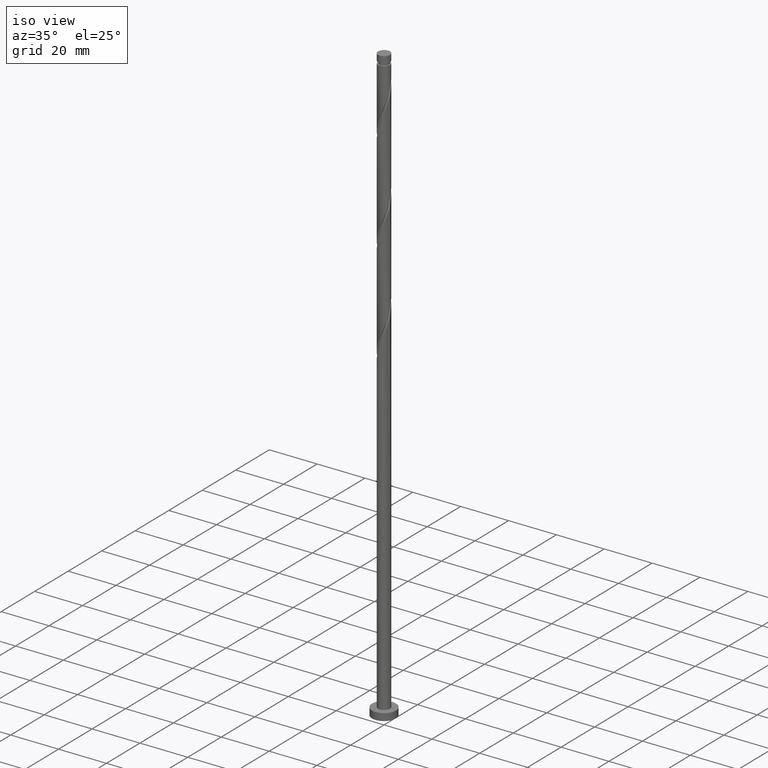
[diagram: clean part render]
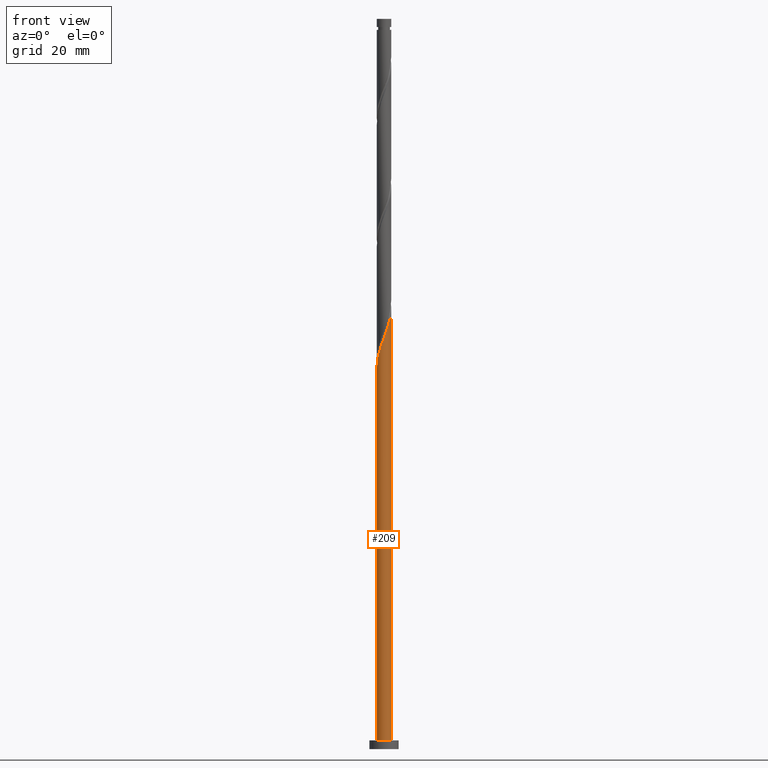
[diagram: tour spotlight — one face highlighted and labeled with its STEP entity id]
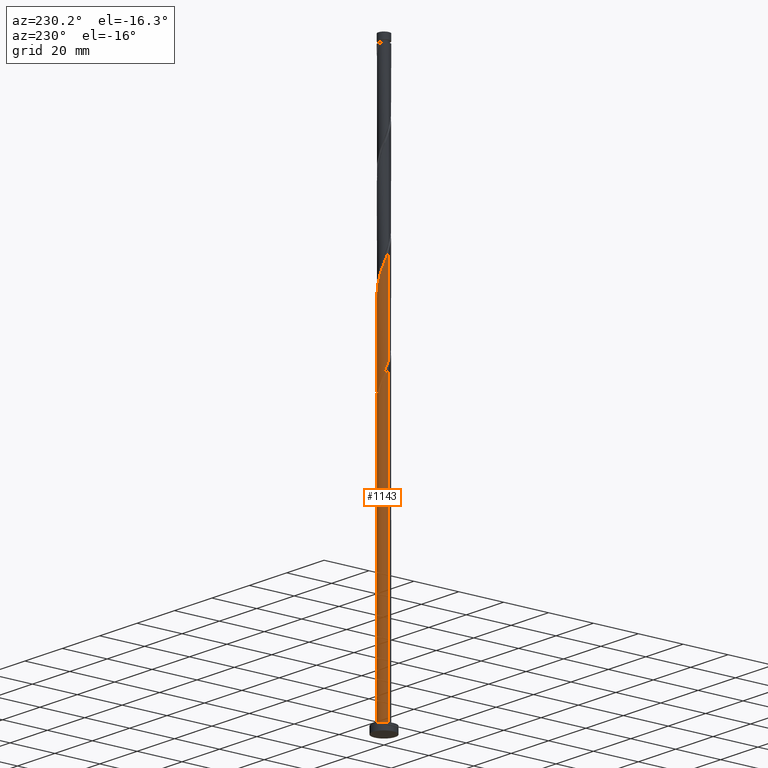
[diagram: tour spotlight — one face highlighted and labeled with its STEP entity id]
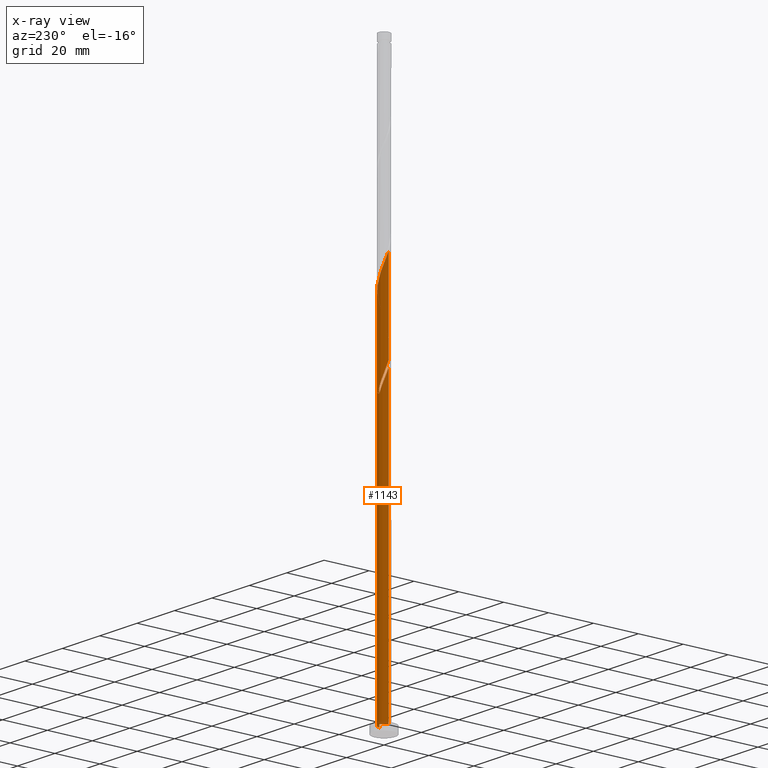
[diagram: x-ray of the same camera — body ghosted, this tour face saturated]
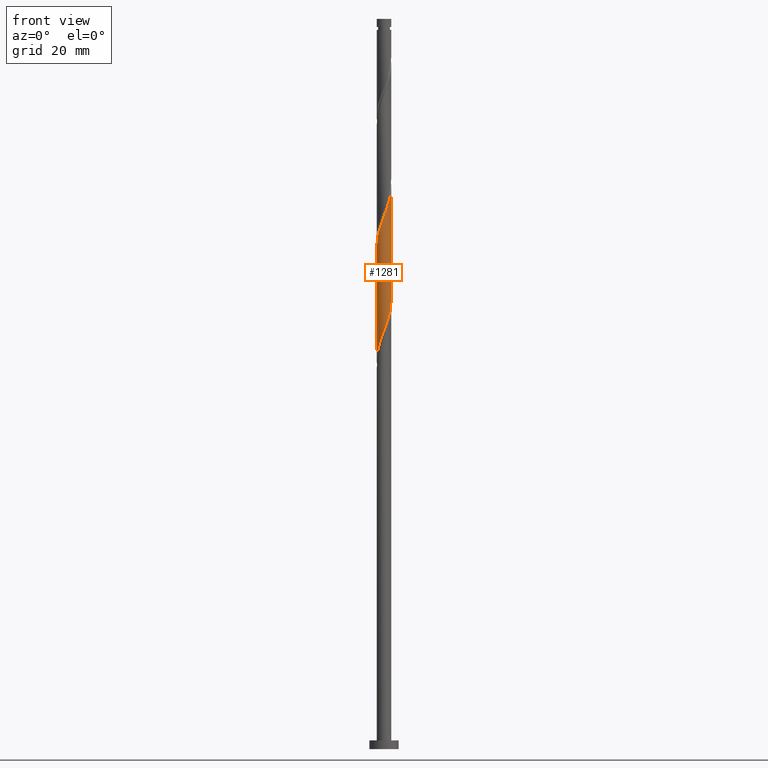
[diagram: tour spotlight — one face highlighted and labeled with its STEP entity id]
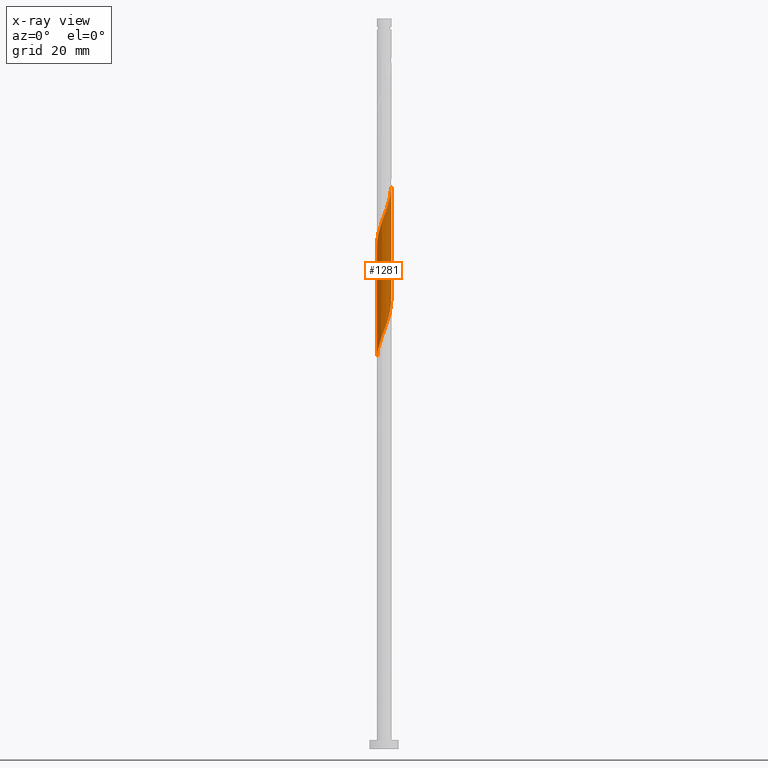
[diagram: x-ray of the same camera — body ghosted, this tour face saturated]
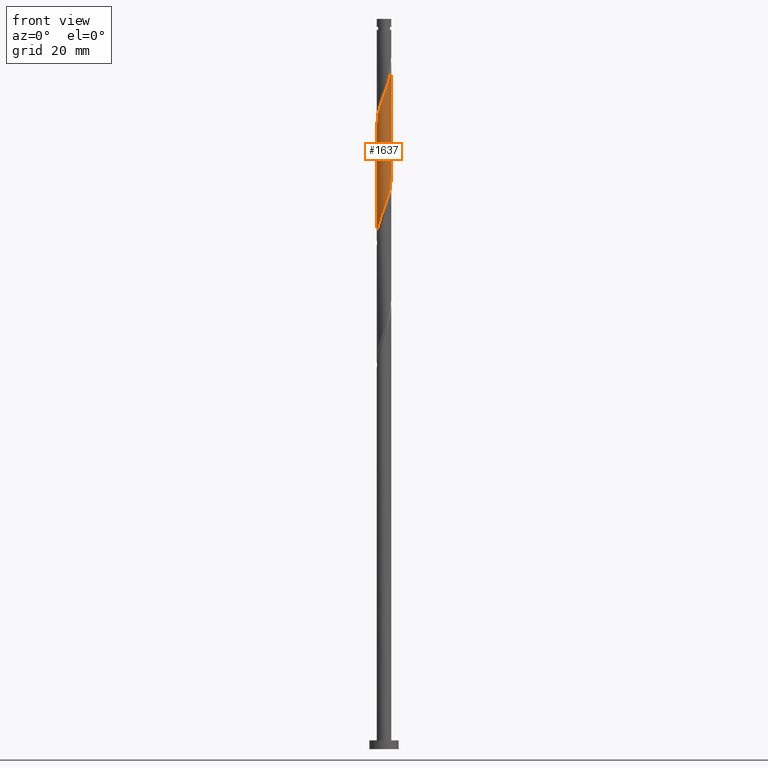
[diagram: tour spotlight — one face highlighted and labeled with its STEP entity id]
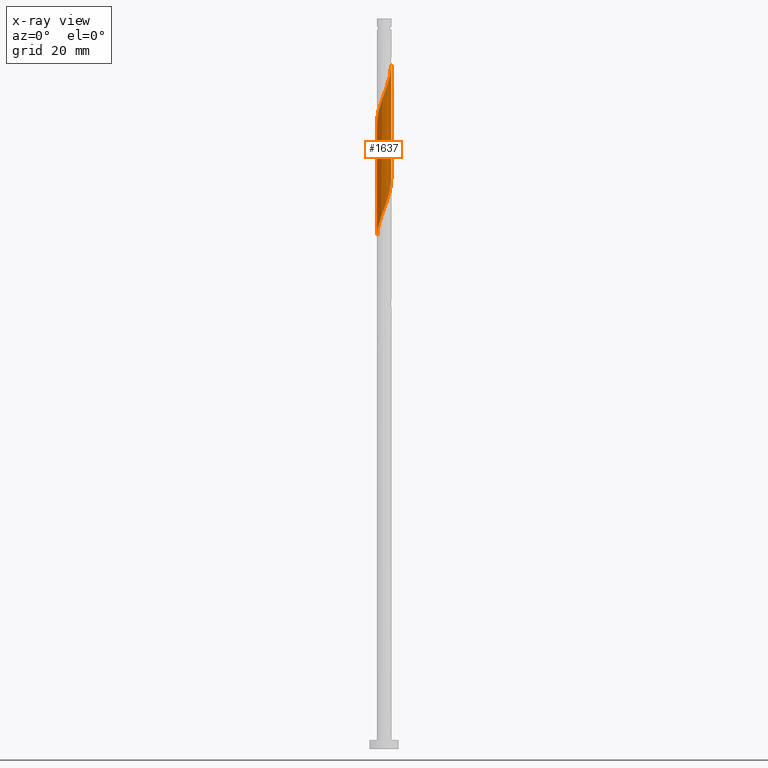
[diagram: x-ray of the same camera — body ghosted, this tour face saturated]
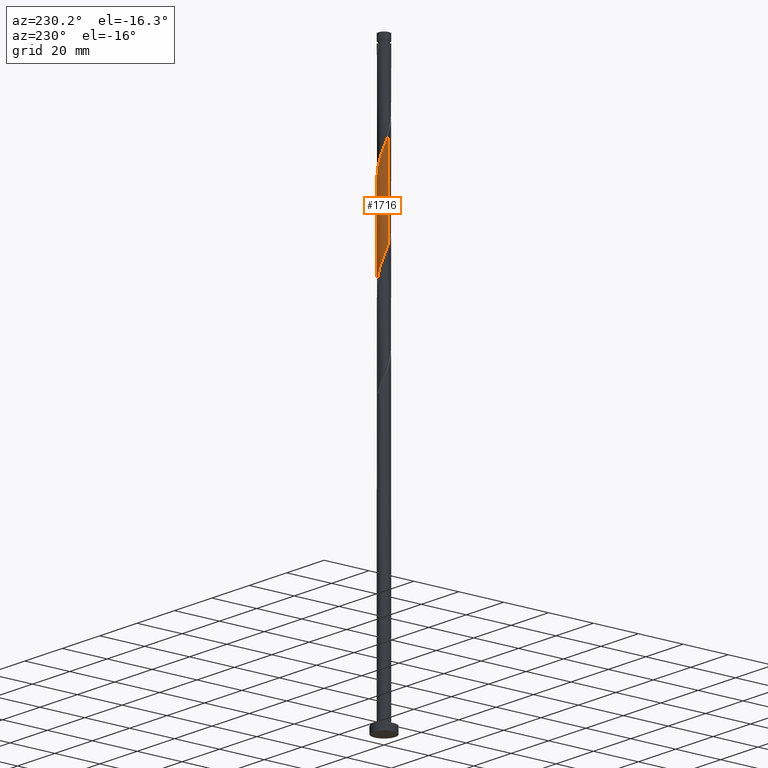
[diagram: tour spotlight — one face highlighted and labeled with its STEP entity id]
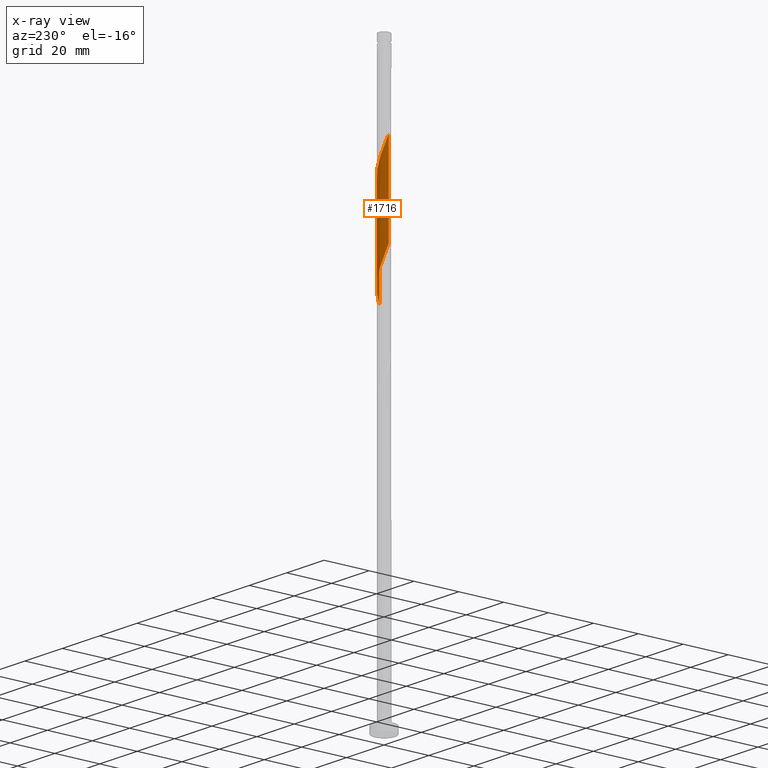
[diagram: x-ray of the same camera — body ghosted, this tour face saturated]
A machine part: a face-by-face anatomy tour. The part has 21 B-rep faces; the first image is the clean iso view, then the 5 largest visible faces are spotlighted one at a time (largest first), each with its STEP entity span.

Face 1 — front view, entity #209. In plain terms, the highlighted cylindrical surface (edge-blend (fillet) strip) has radius 2.5 mm, axis along (-0, -0, -1).
Definition (entity closure, byte-faithful):
#61 = LINE ( 'NONE', #499, #331 ) ;
#62 = CYLINDRICAL_SURFACE ( 'NONE', #1189, 2.500000000000000000 ) ;
#66 = ORIENTED_EDGE ( 'NONE', *, *, #1746, .F. ) ;
#78 = DIRECTION ( 'NONE',  ( 1.000000000000000000, 0.000000000000000000, 0.000000000000000000 ) ) ;
#128 = CARTESIAN_POINT ( 'NONE',  ( -1.514998017198624591, -2.011697447541360706, 136.4402765631368197 ) ) ;
#131 =( BOUNDED_CURVE ( )  B_SPLINE_CURVE ( 2, ( #958, #1408, #400, #967, #533, #1098, #1527, #1385, #1674, #128, #949, #1249, #283, #1090, #847, #1656, #1402, #1519, #266, #1394, #418, #976, #1544, #1812, #831, #409, #1534, #276, #840 ),
 .UNSPECIFIED., .F., .T. ) 
 B_SPLINE_CURVE_WITH_KNOTS ( ( 3, 2, 2, 2, 2, 2, 2, 2, 2, 2, 2, 2, 2, 2, 3 ),
 ( 0.05452716259738331350, 0.05769230769230770939, 0.06730769230769229061, 0.07692307692307687184, 0.08653846153846156408, 0.09615384615384614531, 0.1057692307692307265, 0.1153846153846154188, 0.1250000000000000000, 0.1346153846153845812, 0.1442307692307692735, 0.1538461538461538547, 0.1634615384615384359, 0.1730769230769231282, 0.1795271625973835494 ),
 .UNSPECIFIED. ) 
 CURVE ( )  GEOMETRIC_REPRESENTATION_ITEM ( )  RATIONAL_B_SPLINE_CURVE ( ( 0.9061636035683001689, 0.9069090390690888182, 0.9090909090909453649, 0.9024626128164486838, 0.9090909090909453649, 0.9024626128164486838, 0.9090909090909453649, 0.9024626128164486838, 0.9090909090909453649, 0.9024626128164486838, 0.9090909090909453649, 0.9024626128164486838, 0.9090909090909453649, 0.9024626128164486838, 0.9090909090909453649, 0.9024626128164486838, 0.9090909090909453649, 0.9024626128164486838, 0.9090909090909453649, 0.9024626128164486838, 0.9090909090909453649, 0.9024626128164486838, 0.9090909090909453649, 0.9024626128164486838, 0.9090909090909453649, 0.9024626128164486838, 0.9090909090909453649, 0.9046444828383051195, 0.9061636035683002799 ) ) 
 REPRESENTATION_ITEM ( '' )  );
#175 = VERTEX_POINT ( 'NONE', #1176 ) ;
#179 = FACE_OUTER_BOUND ( 'NONE', #1435, .T. ) ;
#209 = ADVANCED_FACE ( 'NONE', ( #179 ), #62, .T. ) ;
#219 = CARTESIAN_POINT ( 'NONE',  ( 0.000000000000000000, 0.000000000000000000, 3.000000000000000000 ) ) ;
#220 = CARTESIAN_POINT ( 'NONE',  ( 0.000000000000000000, 0.000000000000000000, 250.0000000000000000 ) ) ;
#266 = CARTESIAN_POINT ( 'NONE',  ( 1.069360832754714163, -2.259749412959357606, 143.6518150246752725 ) ) ;
#276 = CARTESIAN_POINT ( 'NONE',  ( 2.500000000000005773, -0.2031410963426067973, 150.5982949755376126 ) ) ;
#283 = CARTESIAN_POINT ( 'NONE',  ( -0.6980629606895826234, -2.400564121808312912, 138.8441227169829517 ) ) ;
#323 = VERTEX_POINT ( 'NONE', #987 ) ;
#331 = VECTOR ( 'NONE', #1489, 1000.000000000000000 ) ;
#400 = CARTESIAN_POINT ( 'NONE',  ( -2.492102982822527846, -0.1985515625903704062, 130.8313022041624549 ) ) ;
#409 = CARTESIAN_POINT ( 'NONE',  ( 2.418195489578345736, -0.7031900075677504081, 149.2607893836496373 ) ) ;
#418 = CARTESIAN_POINT ( 'NONE',  ( 1.579080582324886572, -1.938170403892422122, 145.2543791272393321 ) ) ;
#453 = DIRECTION ( 'NONE',  ( -0.000000000000000000, -0.000000000000000000, -1.000000000000000000 ) ) ;
#465 = CARTESIAN_POINT ( 'NONE',  ( 2.500000000000000000, 3.061616997868383141E-16, 250.0000000000000000 ) ) ;
#499 = CARTESIAN_POINT ( 'NONE',  ( -2.500000000000000000, 0.000000000000000000, 250.0000000000000000 ) ) ;
#533 = CARTESIAN_POINT ( 'NONE',  ( -2.372170500257943626, -0.7891812958414541335, 132.4338663067265429 ) ) ;
#566 = VERTEX_POINT ( 'NONE', #638 ) ;
#621 = ORIENTED_EDGE ( 'NONE', *, *, #1824, .F. ) ;
#638 = CARTESIAN_POINT ( 'NONE',  ( -2.500000000000000000, 0.000000000000000000, 3.000000000000000000 ) ) ;
#692 = EDGE_CURVE ( 'NONE', #763, #566, #61, .T. ) ;
#705 = EDGE_CURVE ( 'NONE', #566, #175, #1066, .T. ) ;
#763 = VERTEX_POINT ( 'NONE', #1819 ) ;
#785 = DIRECTION ( 'NONE',  ( 0.000000000000000000, 0.000000000000000000, 1.000000000000000000 ) ) ;
#831 = CARTESIAN_POINT ( 'NONE',  ( 2.298919114669788932, -0.9823293257385184996, 148.4595073323675933 ) ) ;
#840 = CARTESIAN_POINT ( 'NONE',  ( 2.500000000000003997, 1.809668562527655039E-15, 151.1379957128859814 ) ) ;
#847 = CARTESIAN_POINT ( 'NONE',  ( -0.1032859222543204558, -2.497865492428304801, 140.4466868195470681 ) ) ;
#949 = CARTESIAN_POINT ( 'NONE',  ( -1.252271117205187911, -2.163750690124370379, 137.2415586144188353 ) ) ;
#958 = CARTESIAN_POINT ( 'NONE',  ( -2.500000000000004441, 4.823290176984866626E-15, 130.3046623795526386 ) ) ;
#967 = CARTESIAN_POINT ( 'NONE',  ( -2.467994458320927009, -0.5011476491587930626, 131.6325842554444705 ) ) ;
#976 = CARTESIAN_POINT ( 'NONE',  ( 1.814417076588193956, -1.746435307918772661, 146.0556611785214614 ) ) ;
#987 = CARTESIAN_POINT ( 'NONE',  ( 2.500000000000003997, 1.809668562527655039E-15, 151.1379957128859814 ) ) ;
#1066 = CIRCLE ( 'NONE', #1360, 2.500000000000000000 ) ;
#1090 = CARTESIAN_POINT ( 'NONE',  ( -0.4065817041674132937, -2.485324310909244883, 139.6454047682649957 ) ) ;
#1098 = CARTESIAN_POINT ( 'NONE',  ( -2.276346542194960243, -1.077214942524115981, 133.2351483580086153 ) ) ;
#1120 = ORIENTED_EDGE ( 'NONE', *, *, #705, .T. ) ;
#1130 = LINE ( 'NONE', #465, #1334 ) ;
#1160 = DIRECTION ( 'NONE',  ( -0.000000000000000000, -0.000000000000000000, -1.000000000000000000 ) ) ;
#1161 = ORIENTED_EDGE ( 'NONE', *, *, #692, .T. ) ;
#1176 = CARTESIAN_POINT ( 'NONE',  ( 2.500000000000000000, 3.061616997868383141E-16, 3.000000000000000000 ) ) ;
#1189 = AXIS2_PLACEMENT_3D ( 'NONE', #220, #453, #1265 ) ;
#1249 = CARTESIAN_POINT ( 'NONE',  ( -0.9895442172117517865, -2.315803932707379609, 138.0428406657008509 ) ) ;
#1265 = DIRECTION ( 'NONE',  ( -1.000000000000000000, 0.000000000000000000, 0.000000000000000000 ) ) ;
#1334 = VECTOR ( 'NONE', #1160, 1000.000000000000000 ) ;
#1360 = AXIS2_PLACEMENT_3D ( 'NONE', #219, #785, #78 ) ;
#1385 = CARTESIAN_POINT ( 'NONE',  ( -1.952405639219642053, -1.590678418946936512, 134.8377124605727033 ) ) ;
#1394 = CARTESIAN_POINT ( 'NONE',  ( 1.343744088061578745, -2.129905499866072471, 144.4530970759573165 ) ) ;
#1402 = CARTESIAN_POINT ( 'NONE',  ( 0.4974937185533119255, -2.450000000000003286, 142.0492509221110993 ) ) ;
#1408 = CARTESIAN_POINT ( 'NONE',  ( -2.500000000000004441, -0.09943282584192157658, 130.5688332951855841 ) ) ;
#1435 = EDGE_LOOP ( 'NONE', ( #621, #66, #1161, #1120 ) ) ;
#1489 = DIRECTION ( 'NONE',  ( -0.000000000000000000, -0.000000000000000000, -1.000000000000000000 ) ) ;
#1519 = CARTESIAN_POINT ( 'NONE',  ( 0.7949775774478504697, -2.389593326052643185, 142.8505329733932285 ) ) ;
#1527 = CARTESIAN_POINT ( 'NONE',  ( -2.114376090707301259, -1.333946680735526469, 134.0364304092906025 ) ) ;
#1534 = CARTESIAN_POINT ( 'NONE',  ( 2.467203498451238541, -0.4036172657729008573, 150.0620714349316245 ) ) ;
#1544 = CARTESIAN_POINT ( 'NONE',  ( 1.997029908174713153, -1.503951975914030514, 146.8569432298034769 ) ) ;
#1656 = CARTESIAN_POINT ( 'NONE',  ( 0.2000098596587723543, -2.510406673947363387, 141.2479688708290837 ) ) ;
#1674 = CARTESIAN_POINT ( 'NONE',  ( -1.733701828209132767, -1.801187933244148942, 135.6389945118547757 ) ) ;
#1746 = EDGE_CURVE ( 'NONE', #763, #323, #131, .T. ) ;
#1812 = CARTESIAN_POINT ( 'NONE',  ( 2.179642739761232573, -1.261468643909288367, 147.6582252810855493 ) ) ;
#1819 = CARTESIAN_POINT ( 'NONE',  ( -2.500000000000004441, 4.823290176984866626E-15, 130.3046623795526386 ) ) ;
#1824 = EDGE_CURVE ( 'NONE', #323, #175, #1130, .T. ) ;

Face 2 — auxiliary view, entity #1143. An x-ray twin of the same camera follows (body ghosted, this face saturated) — the face is partly hidden behind the body. In plain terms, the highlighted cylindrical surface (edge-blend (fillet) strip) has radius 2.5 mm, axis along (-0, -0, -1).
Definition (entity closure, byte-faithful):
#7 = EDGE_LOOP ( 'NONE', ( #514, #368, #396, #1051, #707, #1460, #1262, #423 ) ) ;
#32 = VERTEX_POINT ( 'NONE', #159 ) ;
#52 = CARTESIAN_POINT ( 'NONE',  ( 1.733701828209132767, 1.801187933244148498, 156.4723278451880617 ) ) ;
#60 = EDGE_CURVE ( 'NONE', #1593, #1722, #1596, .T. ) ;
#61 = LINE ( 'NONE', #499, #331 ) ;
#86 = CARTESIAN_POINT ( 'NONE',  ( 2.372170500257943626, 0.7891812958414528012, 153.2671996400598289 ) ) ;
#97 = CARTESIAN_POINT ( 'NONE',  ( 0.000000000000000000, 0.000000000000000000, 121.2159175887778133 ) ) ;
#106 = CARTESIAN_POINT ( 'NONE',  ( -1.343744088061579189, 2.129905499866072027, 165.2864304092906593 ) ) ;
#115 = CARTESIAN_POINT ( 'NONE',  ( -1.069360832754715052, 2.259749412959357162, 164.4851483580085585 ) ) ;
#118 = CARTESIAN_POINT ( 'NONE',  ( -1.514998017198620373, 2.011697447541358041, 126.8248919477521781 ) ) ;
#146 =( BOUNDED_CURVE ( )  B_SPLINE_CURVE ( 2, ( #369, #1046, #1498, #228, #86, #1171, #475, #1320, #52, #1621, #1601, #1747, #1382, #1237, #1525, #1363, #1107, #1664, #115, #106, #1542, #701, #1258, #1088, #1790, #522, #551, #956, #689 ),
 .UNSPECIFIED., .F., .T. ) 
 B_SPLINE_CURVE_WITH_KNOTS ( ( 3, 2, 2, 2, 2, 2, 2, 2, 2, 2, 2, 2, 2, 2, 3 ),
 ( 0.1795271625973835217, 0.1826923076923077094, 0.1923076923076922906, 0.2019230769230768718, 0.2115384615384615641, 0.2211538461538461453, 0.2307692307692307265, 0.2403846153846154188, 0.2500000000000000000, 0.2596153846153845812, 0.2692307692307692735, 0.2788461538461538547, 0.2884615384615384359, 0.2980769230769231282, 0.3045271625973828833 ),
 .UNSPECIFIED. ) 
 CURVE ( )  GEOMETRIC_REPRESENTATION_ITEM ( )  RATIONAL_B_SPLINE_CURVE ( ( 0.9061636035683002799, 0.9069090390690889292, 0.9090909090909453649, 0.9024626128164486838, 0.9090909090909453649, 0.9024626128164486838, 0.9090909090909453649, 0.9024626128164486838, 0.9090909090909453649, 0.9024626128164486838, 0.9090909090909453649, 0.9024626128164486838, 0.9090909090909453649, 0.9024626128164486838, 0.9090909090909453649, 0.9024626128164486838, 0.9090909090909453649, 0.9024626128164486838, 0.9090909090909453649, 0.9024626128164486838, 0.9090909090909453649, 0.9024626128164486838, 0.9090909090909453649, 0.9024626128164486838, 0.9090909090909453649, 0.9024626128164486838, 0.9090909090909453649, 0.9046444828383055636, 0.9061636035682998358 ) ) 
 REPRESENTATION_ITEM ( '' )  );
#159 = CARTESIAN_POINT ( 'NONE',  ( -2.500000000000003997, -2.168611087326528848E-15, 171.9713290462192390 ) ) ;
#175 = VERTEX_POINT ( 'NONE', #1176 ) ;
#228 = CARTESIAN_POINT ( 'NONE',  ( 2.467994458320927009, 0.5011476491587928406, 152.4659175887778417 ) ) ;
#257 = CARTESIAN_POINT ( 'NONE',  ( -1.733701828209129658, 1.801187933244146722, 127.6261739990342221 ) ) ;
#267 = CARTESIAN_POINT ( 'NONE',  ( -2.372170500257938741, 0.7891812958414540224, 130.8313022041624549 ) ) ;
#269 = CARTESIAN_POINT ( 'NONE',  ( -1.343744088061579189, 2.129905499866072027, 123.6197637426239879 ) ) ;
#307 = DIRECTION ( 'NONE',  ( 0.000000000000000000, 0.000000000000000000, 1.000000000000000000 ) ) ;
#323 = VERTEX_POINT ( 'NONE', #987 ) ;
#331 = VECTOR ( 'NONE', #1489, 1000.000000000000000 ) ;
#368 = ORIENTED_EDGE ( 'NONE', *, *, #1824, .T. ) ;
#369 = CARTESIAN_POINT ( 'NONE',  ( 2.500000000000003997, 1.809668562527655039E-15, 151.1379957128859814 ) ) ;
#374 = DIRECTION ( 'NONE',  ( -1.000000000000000000, 0.000000000000000000, 0.000000000000000000 ) ) ;
#383 = CARTESIAN_POINT ( 'NONE',  ( 0.000000000000000000, 0.000000000000000000, 250.0000000000000000 ) ) ;
#392 = EDGE_CURVE ( 'NONE', #32, #1593, #1836, .T. ) ;
#396 = ORIENTED_EDGE ( 'NONE', *, *, #415, .T. ) ;
#415 = EDGE_CURVE ( 'NONE', #175, #566, #887, .T. ) ;
#419 = CARTESIAN_POINT ( 'NONE',  ( -2.492102982822523849, 0.1985515625903713222, 132.4338663067265145 ) ) ;
#423 = ORIENTED_EDGE ( 'NONE', *, *, #392, .F. ) ;
#432 = CARTESIAN_POINT ( 'NONE',  ( -2.467203498451238097, 0.4036172657729007462, 129.2287381015983101 ) ) ;
#465 = CARTESIAN_POINT ( 'NONE',  ( 2.500000000000000000, 3.061616997868383141E-16, 250.0000000000000000 ) ) ;
#475 = CARTESIAN_POINT ( 'NONE',  ( 2.114376090707301259, 1.333946680735527135, 154.8697637426239453 ) ) ;
#499 = CARTESIAN_POINT ( 'NONE',  ( -2.500000000000000000, 0.000000000000000000, 250.0000000000000000 ) ) ;
#514 = ORIENTED_EDGE ( 'NONE', *, *, #734, .F. ) ;
#522 = CARTESIAN_POINT ( 'NONE',  ( -2.418195489578346180, 0.7031900075677491868, 170.0941227169829517 ) ) ;
#531 = DIRECTION ( 'NONE',  ( -1.000000000000000000, 0.000000000000000000, 0.000000000000000000 ) ) ;
#547 = CARTESIAN_POINT ( 'NONE',  ( -1.997029908174713375, 1.503951975914030292, 126.0236098964701341 ) ) ;
#551 = CARTESIAN_POINT ( 'NONE',  ( -2.467203498451238097, 0.4036172657729007462, 170.8954047682649957 ) ) ;
#565 = CARTESIAN_POINT ( 'NONE',  ( -1.579080582324886572, 1.938170403892422122, 124.4210457939060319 ) ) ;
#566 = VERTEX_POINT ( 'NONE', #638 ) ;
#590 = CARTESIAN_POINT ( 'NONE',  ( 0.000000000000000000, 0.000000000000000000, 3.000000000000000000 ) ) ;
#638 = CARTESIAN_POINT ( 'NONE',  ( -2.500000000000000000, 0.000000000000000000, 3.000000000000000000 ) ) ;
#658 = CARTESIAN_POINT ( 'NONE',  ( -2.499999999999999556, 5.201675421877049032E-14, 132.9605061313362455 ) ) ;
#689 = CARTESIAN_POINT ( 'NONE',  ( -2.500000000000004441, -2.168611087326528848E-15, 171.9713290462192390 ) ) ;
#692 = EDGE_CURVE ( 'NONE', #763, #566, #61, .T. ) ;
#694 = VECTOR ( 'NONE', #1314, 1000.000000000000000 ) ;
#701 = CARTESIAN_POINT ( 'NONE',  ( -1.814417076588194400, 1.746435307918772217, 166.8889945118547473 ) ) ;
#707 = ORIENTED_EDGE ( 'NONE', *, *, #1384, .F. ) ;
#722 = CARTESIAN_POINT ( 'NONE',  ( -2.179642739761232573, 1.261468643909287479, 126.8248919477521781 ) ) ;
#734 = EDGE_CURVE ( 'NONE', #323, #32, #146, .T. ) ;
#763 = VERTEX_POINT ( 'NONE', #1819 ) ;
#813 = CARTESIAN_POINT ( 'NONE',  ( -2.499999999999999556, 5.201675421877049032E-14, 132.9605061313362455 ) ) ;
#815 = CARTESIAN_POINT ( 'NONE',  ( -1.814417076588194400, 1.746435307918772217, 125.2223278451880475 ) ) ;
#819 = CARTESIAN_POINT ( 'NONE',  ( -0.4065817041674112953, 2.485324310909239998, 123.6197637426239453 ) ) ;
#887 = CIRCLE ( 'NONE', #1273, 2.500000000000000000 ) ;
#889 = AXIS2_PLACEMENT_3D ( 'NONE', #383, #1311, #374 ) ;
#919 = EDGE_CURVE ( 'NONE', #1465, #1722, #1306, .T. ) ;
#926 = CYLINDRICAL_SURFACE ( 'NONE', #889, 2.500000000000000000 ) ;
#945 = CARTESIAN_POINT ( 'NONE',  ( -0.9895442172117494550, 2.315803932707376500, 125.2223278451880191 ) ) ;
#956 = CARTESIAN_POINT ( 'NONE',  ( -2.500000000000002665, 0.2031410963426267535, 171.4316283088709270 ) ) ;
#960 = CARTESIAN_POINT ( 'NONE',  ( -0.7949775774478510248, 2.389593326052643185, 122.0171996400598715 ) ) ;
#964 = CARTESIAN_POINT ( 'NONE',  ( 0.4974937185533124251, 2.449999999999999289, 121.2159175887778275 ) ) ;
#968 = CARTESIAN_POINT ( 'NONE',  ( -2.499999999999997780, 0.09943282584194730600, 132.6963352157033569 ) ) ;
#985 = CARTESIAN_POINT ( 'NONE',  ( -2.114376090707297706, 1.333946680735525137, 129.2287381015983101 ) ) ;
#987 = CARTESIAN_POINT ( 'NONE',  ( 2.500000000000003997, 1.809668562527655039E-15, 151.1379957128859814 ) ) ;
#989 = CARTESIAN_POINT ( 'NONE',  ( -2.418195489578346180, 0.7031900075677491868, 128.4274560503162661 ) ) ;
#1046 = CARTESIAN_POINT ( 'NONE',  ( 2.500000000000003553, 0.09943282584192757179, 151.4021666285189553 ) ) ;
#1051 = ORIENTED_EDGE ( 'NONE', *, *, #692, .F. ) ;
#1088 = CARTESIAN_POINT ( 'NONE',  ( -2.179642739761232573, 1.261468643909287479, 168.4915586144188353 ) ) ;
#1106 = CARTESIAN_POINT ( 'NONE',  ( 0.2000098596587735478, 2.510406673947359835, 122.0171996400598573 ) ) ;
#1107 = CARTESIAN_POINT ( 'NONE',  ( -0.4974937185533115924, 2.450000000000003286, 162.8825842554445558 ) ) ;
#1109 = CARTESIAN_POINT ( 'NONE',  ( 0.4974937185533124251, 2.449999999999999289, 121.2159175887778133 ) ) ;
#1130 = LINE ( 'NONE', #465, #1334 ) ;
#1132 = DIRECTION ( 'NONE',  ( 1.000000000000000000, 0.000000000000000000, 0.000000000000000000 ) ) ;
#1143 = ADVANCED_FACE ( 'NONE', ( #1599 ), #926, .T. ) ;
#1160 = DIRECTION ( 'NONE',  ( -0.000000000000000000, -0.000000000000000000, -1.000000000000000000 ) ) ;
#1171 = CARTESIAN_POINT ( 'NONE',  ( 2.276346542194961131, 1.077214942524115093, 154.0684816913419013 ) ) ;
#1176 = CARTESIAN_POINT ( 'NONE',  ( 2.500000000000000000, 3.061616997868383141E-16, 3.000000000000000000 ) ) ;
#1235 = CARTESIAN_POINT ( 'NONE',  ( -1.252271117205184581, 2.163750690124367715, 126.0236098964701341 ) ) ;
#1237 = CARTESIAN_POINT ( 'NONE',  ( 0.4065817041674135157, 2.485324310909244883, 160.4787381015983101 ) ) ;
#1246 = CARTESIAN_POINT ( 'NONE',  ( -0.1032859222543189709, 2.497865492428299472, 122.8184816913419013 ) ) ;
#1258 = CARTESIAN_POINT ( 'NONE',  ( -1.997029908174713375, 1.503951975914030292, 167.6902765631367913 ) ) ;
#1262 = ORIENTED_EDGE ( 'NONE', *, *, #60, .F. ) ;
#1273 = AXIS2_PLACEMENT_3D ( 'NONE', #590, #307, #1132 ) ;
#1283 =( BOUNDED_CURVE ( )  B_SPLINE_CURVE ( 2, ( #1802, #960, #1668, #269, #565, #815, #547, #722, #1522, #989, #432, #1830, #1697 ),
 .UNSPECIFIED., .F., .T. ) 
 B_SPLINE_CURVE_WITH_KNOTS ( ( 3, 2, 2, 2, 2, 2, 3 ),
 ( 0.000000000000000000, 0.009615384615384581224, 0.01923076923076927347, 0.02884615384615385469, 0.03846153846153843592, 0.04807692307692312816, 0.05452716259738332044 ),
 .UNSPECIFIED. ) 
 CURVE ( )  GEOMETRIC_REPRESENTATION_ITEM ( )  RATIONAL_B_SPLINE_CURVE ( ( 0.9090909090909453649, 0.9024626128164486838, 0.9090909090909453649, 0.9024626128164486838, 0.9090909090909453649, 0.9024626128164486838, 0.9090909090909453649, 0.9024626128164486838, 0.9090909090909453649, 0.9024626128164486838, 0.9090909090909453649, 0.9046444828383053416, 0.9061636035683001689 ) ) 
 REPRESENTATION_ITEM ( '' )  );
#1285 = CARTESIAN_POINT ( 'NONE',  ( -2.500000000000000000, 0.000000000000000000, 250.0000000000000000 ) ) ;
#1306 = CIRCLE ( 'NONE', #1833, 2.500000000000000000 ) ;
#1311 = DIRECTION ( 'NONE',  ( -0.000000000000000000, -0.000000000000000000, -1.000000000000000000 ) ) ;
#1314 = DIRECTION ( 'NONE',  ( -0.000000000000000000, -0.000000000000000000, -1.000000000000000000 ) ) ;
#1320 = CARTESIAN_POINT ( 'NONE',  ( 1.952405639219642719, 1.590678418946936290, 155.6710457939060177 ) ) ;
#1334 = VECTOR ( 'NONE', #1160, 1000.000000000000000 ) ;
#1363 = CARTESIAN_POINT ( 'NONE',  ( -0.2000098596587720490, 2.510406673947363831, 162.0813022041624265 ) ) ;
#1382 = CARTESIAN_POINT ( 'NONE',  ( 0.6980629606895840666, 2.400564121808312024, 159.6774560503162661 ) ) ;
#1384 = EDGE_CURVE ( 'NONE', #1465, #763, #1283, .T. ) ;
#1404 = CARTESIAN_POINT ( 'NONE',  ( -0.4974937185533115924, 2.450000000000003286, 121.2159175887778133 ) ) ;
#1460 = ORIENTED_EDGE ( 'NONE', *, *, #919, .T. ) ;
#1465 = VERTEX_POINT ( 'NONE', #1404 ) ;
#1489 = DIRECTION ( 'NONE',  ( -0.000000000000000000, -0.000000000000000000, -1.000000000000000000 ) ) ;
#1498 = CARTESIAN_POINT ( 'NONE',  ( 2.492102982822527846, 0.1985515625903695458, 151.6646355374958262 ) ) ;
#1516 = CARTESIAN_POINT ( 'NONE',  ( -0.6980629606895805139, 2.400564121808307583, 124.4210457939060177 ) ) ;
#1517 = DIRECTION ( 'NONE',  ( 0.000000000000000000, -0.000000000000000000, -1.000000000000000000 ) ) ;
#1522 = CARTESIAN_POINT ( 'NONE',  ( -2.298919114669788932, 0.9823293257385184996, 127.6261739990342221 ) ) ;
#1525 = CARTESIAN_POINT ( 'NONE',  ( 0.1032859222543218852, 2.497865492428304357, 161.2800201528804109 ) ) ;
#1542 = CARTESIAN_POINT ( 'NONE',  ( -1.579080582324886572, 1.938170403892422122, 166.0877124605727317 ) ) ;
#1545 = CARTESIAN_POINT ( 'NONE',  ( -2.276346542194956246, 1.077214942524114649, 130.0300201528804109 ) ) ;
#1552 = CARTESIAN_POINT ( 'NONE',  ( -1.952405639219638278, 1.590678418946934958, 128.4274560503162661 ) ) ;
#1593 = VERTEX_POINT ( 'NONE', #658 ) ;
#1596 =( BOUNDED_CURVE ( )  B_SPLINE_CURVE ( 2, ( #813, #968, #419, #1800, #267, #1545, #985, #1552, #257, #118, #1235, #945, #1516, #819, #1246, #1106, #964 ),
 .UNSPECIFIED., .F., .T. ) 
 B_SPLINE_CURVE_WITH_KNOTS ( ( 3, 2, 2, 2, 2, 2, 2, 2, 3 ),
 ( 0.9295271625973841045, 0.9326923076923077094, 0.9423076923076922906, 0.9519230769230768718, 0.9615384615384615641, 0.9711538461538461453, 0.9807692307692307265, 0.9903846153846154188, 1.000000000000000000 ),
 .UNSPECIFIED. ) 
 CURVE ( )  GEOMETRIC_REPRESENTATION_ITEM ( )  RATIONAL_B_SPLINE_CURVE ( ( 0.9061636035682938406, 0.9069090390690826009, 0.9090909090909385926, 0.9024626128164420225, 0.9090909090909385926, 0.9024626128164420225, 0.9090909090909385926, 0.9024626128164420225, 0.9090909090909385926, 0.9024626128164420225, 0.9090909090909385926, 0.9024626128164420225, 0.9090909090909385926, 0.9024626128164420225, 0.9090909090909385926, 0.9024626128164420225, 0.9090909090909385926 ) ) 
 REPRESENTATION_ITEM ( '' )  );
#1599 = FACE_OUTER_BOUND ( 'NONE', #7, .T. ) ;
#1601 = CARTESIAN_POINT ( 'NONE',  ( 1.252271117205188355, 2.163750690124370379, 158.0748919477521781 ) ) ;
#1621 = CARTESIAN_POINT ( 'NONE',  ( 1.514998017198625258, 2.011697447541359818, 157.2736098964700773 ) ) ;
#1664 = CARTESIAN_POINT ( 'NONE',  ( -0.7949775774478510248, 2.389593326052643185, 163.6838663067265998 ) ) ;
#1668 = CARTESIAN_POINT ( 'NONE',  ( -1.069360832754715052, 2.259749412959357162, 122.8184816913419155 ) ) ;
#1697 = CARTESIAN_POINT ( 'NONE',  ( -2.500000000000004441, 4.823290176984866626E-15, 130.3046623795526386 ) ) ;
#1722 = VERTEX_POINT ( 'NONE', #1109 ) ;
#1747 = CARTESIAN_POINT ( 'NONE',  ( 0.9895442172117521196, 2.315803932707379609, 158.8761739990342505 ) ) ;
#1790 = CARTESIAN_POINT ( 'NONE',  ( -2.298919114669788932, 0.9823293257385184996, 169.2928406657008793 ) ) ;
#1800 = CARTESIAN_POINT ( 'NONE',  ( -2.467994458320922568, 0.5011476491587928406, 131.6325842554444705 ) ) ;
#1802 = CARTESIAN_POINT ( 'NONE',  ( -0.4974937185533115924, 2.450000000000003286, 121.2159175887778133 ) ) ;
#1819 = CARTESIAN_POINT ( 'NONE',  ( -2.500000000000004441, 4.823290176984866626E-15, 130.3046623795526386 ) ) ;
#1824 = EDGE_CURVE ( 'NONE', #323, #175, #1130, .T. ) ;
#1830 = CARTESIAN_POINT ( 'NONE',  ( -2.500000000000004441, 0.2031410963426132921, 129.7649616422042982 ) ) ;
#1833 = AXIS2_PLACEMENT_3D ( 'NONE', #97, #1517, #531 ) ;
#1836 = LINE ( 'NONE', #1285, #694 ) ;

Face 3 — front view, entity #1281. An x-ray twin of the same camera follows (body ghosted, this face saturated) — the face is partly hidden behind the body. In plain terms, the highlighted cylindrical surface (edge-blend (fillet) strip) has radius 2.5 mm, axis along (-0, -0, -1).
Definition (entity closure, byte-faithful):
#32 = VERTEX_POINT ( 'NONE', #159 ) ;
#39 = CARTESIAN_POINT ( 'NONE',  ( -0.2000098596587740751, -2.510406673947359835, 142.8505329733931717 ) ) ;
#74 = CARTESIAN_POINT ( 'NONE',  ( 1.252271117205184581, -2.163750690124367715, 146.8569432298034485 ) ) ;
#93 = CARTESIAN_POINT ( 'NONE',  ( 0.6980629606895802919, -2.400564121808307583, 145.2543791272393605 ) ) ;
#111 = CARTESIAN_POINT ( 'NONE',  ( 1.814417076588193956, -1.746435307918772661, 187.7223278451880333 ) ) ;
#120 = CARTESIAN_POINT ( 'NONE',  ( 1.579080582324886572, -1.938170403892422122, 186.9210457939060461 ) ) ;
#135 = CARTESIAN_POINT ( 'NONE',  ( 2.499999999999999556, 2.826672382791151800E-15, 153.7938394646696736 ) ) ;
#139 = CARTESIAN_POINT ( 'NONE',  ( 1.343744088061578745, -2.129905499866072471, 186.1197637426239453 ) ) ;
#147 = CARTESIAN_POINT ( 'NONE',  ( 0.4974937185533119255, -2.450000000000003286, 183.7159175887778133 ) ) ;
#159 = CARTESIAN_POINT ( 'NONE',  ( -2.500000000000003997, -2.168611087326528848E-15, 171.9713290462192390 ) ) ;
#251 = CARTESIAN_POINT ( 'NONE',  ( -0.6980629606895826234, -2.400564121808312912, 180.5107893836496373 ) ) ;
#259 = CARTESIAN_POINT ( 'NONE',  ( -1.733701828209132767, -1.801187933244148942, 177.3056611785214045 ) ) ;
#287 = CARTESIAN_POINT ( 'NONE',  ( -2.500000000000004885, -0.09943282584190810125, 172.2354999618521845 ) ) ;
#290 = ORIENTED_EDGE ( 'NONE', *, *, #674, .F. ) ;
#352 = ORIENTED_EDGE ( 'NONE', *, *, #1065, .F. ) ;
#392 = EDGE_CURVE ( 'NONE', #32, #1593, #1836, .T. ) ;
#421 = CARTESIAN_POINT ( 'NONE',  ( -2.492102982822527846, -0.1985515625903704062, 172.4979688708290553 ) ) ;
#472 = CARTESIAN_POINT ( 'NONE',  ( -2.418195489578340851, -0.7031900075677470774, 134.8377124605727033 ) ) ;
#517 = CYLINDRICAL_SURFACE ( 'NONE', #1068, 2.500000000000000000 ) ;
#527 = CARTESIAN_POINT ( 'NONE',  ( -2.298919114669785380, -0.9823293257385157240, 135.6389945118547189 ) ) ;
#535 = CARTESIAN_POINT ( 'NONE',  ( 1.514998017198620150, -2.011697447541358486, 147.6582252810855209 ) ) ;
#555 = CARTESIAN_POINT ( 'NONE',  ( -2.500000000000004441, -2.168611087326528848E-15, 171.9713290462192390 ) ) ;
#569 = CARTESIAN_POINT ( 'NONE',  ( 2.467994458320922568, -0.5011476491587932847, 152.4659175887777849 ) ) ;
#574 = CARTESIAN_POINT ( 'NONE',  ( 2.179642739761232573, -1.261468643909288367, 189.3248919477521781 ) ) ;
#584 = CARTESIAN_POINT ( 'NONE',  ( 2.500000000000003997, 1.809668562527655039E-15, 192.8046623795525534 ) ) ;
#616 = CARTESIAN_POINT ( 'NONE',  ( 2.276346542194956246, -1.077214942524114427, 150.8633534862137537 ) ) ;
#652 = CARTESIAN_POINT ( 'NONE',  ( -1.343744088061578079, -2.129905499866068030, 139.6454047682649389 ) ) ;
#658 = CARTESIAN_POINT ( 'NONE',  ( -2.499999999999999556, 5.201675421877049032E-14, 132.9605061313362455 ) ) ;
#672 = CARTESIAN_POINT ( 'NONE',  ( -0.4974937185533120365, -2.449999999999999289, 142.0492509221111561 ) ) ;
#674 = EDGE_CURVE ( 'NONE', #1838, #1181, #1638, .T. ) ;
#686 = CARTESIAN_POINT ( 'NONE',  ( 2.298919114669788932, -0.9823293257385184996, 190.1261739990342505 ) ) ;
#694 = VECTOR ( 'NONE', #1314, 1000.000000000000000 ) ;
#752 = CARTESIAN_POINT ( 'NONE',  ( -1.579080582324884796, -1.938170403892418792, 138.8441227169829233 ) ) ;
#777 = ORIENTED_EDGE ( 'NONE', *, *, #1487, .F. ) ;
#778 = CARTESIAN_POINT ( 'NONE',  ( 2.500000000000000000, 3.061616997868383141E-16, 250.0000000000000000 ) ) ;
#782 = CARTESIAN_POINT ( 'NONE',  ( -1.814417076588191735, -1.746435307918769331, 138.0428406657008509 ) ) ;
#789 = CARTESIAN_POINT ( 'NONE',  ( 1.952405639219636946, -1.590678418946936068, 149.2607893836496658 ) ) ;
#799 = CARTESIAN_POINT ( 'NONE',  ( 0.4065817041674103516, -2.485324310909239998, 144.4530970759572881 ) ) ;
#826 = CARTESIAN_POINT ( 'NONE',  ( -0.9895442172117517865, -2.315803932707379609, 179.7095073323675649 ) ) ;
#835 = CARTESIAN_POINT ( 'NONE',  ( 2.467203498451238541, -0.4036172657729008573, 191.7287381015983101 ) ) ;
#859 = VECTOR ( 'NONE', #1763, 1000.000000000000000 ) ;
#892 =( BOUNDED_CURVE ( )  B_SPLINE_CURVE ( 2, ( #135, #1264, #1826, #569, #1085, #616, #1786, #789, #1767, #535, #74, #1495, #93, #799, #1027, #39, #672, #1206, #1738, #652, #752, #782, #1658, #1343, #527, #472, #1092, #1168, #1794 ),
 .UNSPECIFIED., .F., .T. ) 
 B_SPLINE_CURVE_WITH_KNOTS ( ( 3, 2, 2, 2, 2, 2, 2, 2, 2, 2, 2, 2, 2, 2, 3 ),
 ( 0.8045271625973835494, 0.8076923076923077094, 0.8173076923076922906, 0.8269230769230768718, 0.8365384615384615641, 0.8461538461538461453, 0.8557692307692307265, 0.8653846153846154188, 0.8750000000000000000, 0.8846153846153845812, 0.8942307692307692735, 0.9038461538461538547, 0.9134615384615384359, 0.9230769230769231282, 0.9295271625973841045 ),
 .UNSPECIFIED. ) 
 CURVE ( )  GEOMETRIC_REPRESENTATION_ITEM ( )  RATIONAL_B_SPLINE_CURVE ( ( 0.9061636035682933965, 0.9069090390690821568, 0.9090909090909385926, 0.9024626128164420225, 0.9090909090909385926, 0.9024626128164420225, 0.9090909090909385926, 0.9024626128164420225, 0.9090909090909385926, 0.9024626128164420225, 0.9090909090909385926, 0.9024626128164420225, 0.9090909090909385926, 0.9024626128164420225, 0.9090909090909385926, 0.9024626128164420225, 0.9090909090909385926, 0.9024626128164420225, 0.9090909090909385926, 0.9024626128164420225, 0.9090909090909385926, 0.9024626128164420225, 0.9090909090909385926, 0.9024626128164420225, 0.9090909090909385926, 0.9024626128164420225, 0.9090909090909385926, 0.9046444828382980141, 0.9061636035682938406 ) ) 
 REPRESENTATION_ITEM ( '' )  );
#934 = DIRECTION ( 'NONE',  ( -1.000000000000000000, 0.000000000000000000, 0.000000000000000000 ) ) ;
#942 = FACE_OUTER_BOUND ( 'NONE', #1703, .T. ) ;
#970 = CARTESIAN_POINT ( 'NONE',  ( -0.1032859222543204558, -2.497865492428304801, 182.1133534862137253 ) ) ;
#979 = CARTESIAN_POINT ( 'NONE',  ( -1.514998017198624591, -2.011697447541360706, 178.1069432298034769 ) ) ;
#1001 = CARTESIAN_POINT ( 'NONE',  ( 2.500000000000003997, 1.809668562527655039E-15, 192.8046623795525534 ) ) ;
#1027 = CARTESIAN_POINT ( 'NONE',  ( 0.1032859222543181799, -2.497865492428299916, 143.6518150246752441 ) ) ;
#1065 = EDGE_CURVE ( 'NONE', #1181, #1593, #892, .T. ) ;
#1068 = AXIS2_PLACEMENT_3D ( 'NONE', #1074, #1642, #934 ) ;
#1074 = CARTESIAN_POINT ( 'NONE',  ( 0.000000000000000000, 0.000000000000000000, 250.0000000000000000 ) ) ;
#1084 =( BOUNDED_CURVE ( )  B_SPLINE_CURVE ( 2, ( #555, #287, #421, #1103, #1112, #1529, #1119, #1134, #259, #979, #1378, #826, #251, #1676, #970, #1387, #147, #1536, #1278, #139, #120, #111, #1839, #574, #686, #1268, #835, #1253, #584 ),
 .UNSPECIFIED., .F., .T. ) 
 B_SPLINE_CURVE_WITH_KNOTS ( ( 3, 2, 2, 2, 2, 2, 2, 2, 2, 2, 2, 2, 2, 2, 3 ),
 ( 0.3045271625973828833, 0.3076923076923077094, 0.3173076923076922906, 0.3269230769230768718, 0.3365384615384615641, 0.3461538461538461453, 0.3557692307692307265, 0.3653846153846154188, 0.3750000000000000000, 0.3846153846153845812, 0.3942307692307692735, 0.4038461538461538547, 0.4134615384615384359, 0.4230769230769231282, 0.4295271625973832164 ),
 .UNSPECIFIED. ) 
 CURVE ( )  GEOMETRIC_REPRESENTATION_ITEM ( )  RATIONAL_B_SPLINE_CURVE ( ( 0.9061636035682998358, 0.9069090390690883741, 0.9090909090909453649, 0.9024626128164486838, 0.9090909090909453649, 0.9024626128164486838, 0.9090909090909453649, 0.9024626128164486838, 0.9090909090909453649, 0.9024626128164486838, 0.9090909090909453649, 0.9024626128164486838, 0.9090909090909453649, 0.9024626128164486838, 0.9090909090909453649, 0.9024626128164486838, 0.9090909090909453649, 0.9024626128164486838, 0.9090909090909453649, 0.9024626128164486838, 0.9090909090909453649, 0.9024626128164486838, 0.9090909090909453649, 0.9024626128164486838, 0.9090909090909453649, 0.9024626128164486838, 0.9090909090909453649, 0.9046444828383053416, 0.9061636035683000578 ) ) 
 REPRESENTATION_ITEM ( '' )  );
#1085 = CARTESIAN_POINT ( 'NONE',  ( 2.372170500257938741, -0.7891812958414550216, 151.6646355374957977 ) ) ;
#1092 = CARTESIAN_POINT ( 'NONE',  ( -2.467203498451233212, -0.4036172657728987478, 134.0364304092906025 ) ) ;
#1103 = CARTESIAN_POINT ( 'NONE',  ( -2.467994458320927009, -0.5011476491587930626, 173.2992509221111277 ) ) ;
#1112 = CARTESIAN_POINT ( 'NONE',  ( -2.372170500257943626, -0.7891812958414541335, 174.1005329733932285 ) ) ;
#1119 = CARTESIAN_POINT ( 'NONE',  ( -2.114376090707301259, -1.333946680735526469, 175.7030970759572881 ) ) ;
#1134 = CARTESIAN_POINT ( 'NONE',  ( -1.952405639219642053, -1.590678418946936512, 176.5043791272393605 ) ) ;
#1168 = CARTESIAN_POINT ( 'NONE',  ( -2.500000000000003553, -0.2031410963425873684, 133.5002068686846144 ) ) ;
#1181 = VERTEX_POINT ( 'NONE', #1351 ) ;
#1206 = CARTESIAN_POINT ( 'NONE',  ( -0.7949775774478510248, -2.389593326052639188, 141.2479688708290553 ) ) ;
#1253 = CARTESIAN_POINT ( 'NONE',  ( 2.500000000000004441, -0.2031410963426163729, 192.2649616422042982 ) ) ;
#1264 = CARTESIAN_POINT ( 'NONE',  ( 2.499999999999999556, -0.09943282584193112450, 153.5296685490366713 ) ) ;
#1268 = CARTESIAN_POINT ( 'NONE',  ( 2.418195489578345736, -0.7031900075677504081, 190.9274560503162661 ) ) ;
#1278 = CARTESIAN_POINT ( 'NONE',  ( 1.069360832754714163, -2.259749412959357606, 185.3184816913419013 ) ) ;
#1281 = ADVANCED_FACE ( 'NONE', ( #942 ), #517, .T. ) ;
#1285 = CARTESIAN_POINT ( 'NONE',  ( -2.500000000000000000, 0.000000000000000000, 250.0000000000000000 ) ) ;
#1314 = DIRECTION ( 'NONE',  ( -0.000000000000000000, -0.000000000000000000, -1.000000000000000000 ) ) ;
#1323 = ORIENTED_EDGE ( 'NONE', *, *, #392, .T. ) ;
#1343 = CARTESIAN_POINT ( 'NONE',  ( -2.179642739761229464, -1.261468643909284149, 136.4402765631367629 ) ) ;
#1351 = CARTESIAN_POINT ( 'NONE',  ( 2.499999999999999556, 2.826672382791151800E-15, 153.7938394646696452 ) ) ;
#1378 = CARTESIAN_POINT ( 'NONE',  ( -1.252271117205187911, -2.163750690124370379, 178.9082252810855493 ) ) ;
#1387 = CARTESIAN_POINT ( 'NONE',  ( 0.2000098596587723543, -2.510406673947363387, 182.9146355374957125 ) ) ;
#1487 = EDGE_CURVE ( 'NONE', #32, #1838, #1084, .T. ) ;
#1495 = CARTESIAN_POINT ( 'NONE',  ( 0.9895442172117492330, -2.315803932707376944, 146.0556611785214329 ) ) ;
#1529 = CARTESIAN_POINT ( 'NONE',  ( -2.276346542194960243, -1.077214942524115981, 174.9018150246752441 ) ) ;
#1536 = CARTESIAN_POINT ( 'NONE',  ( 0.7949775774478504697, -2.389593326052643185, 184.5171996400598857 ) ) ;
#1593 = VERTEX_POINT ( 'NONE', #658 ) ;
#1638 = LINE ( 'NONE', #778, #859 ) ;
#1642 = DIRECTION ( 'NONE',  ( -0.000000000000000000, -0.000000000000000000, -1.000000000000000000 ) ) ;
#1658 = CARTESIAN_POINT ( 'NONE',  ( -1.997029908174710933, -1.503951975914026074, 137.2415586144188353 ) ) ;
#1676 = CARTESIAN_POINT ( 'NONE',  ( -0.4065817041674132937, -2.485324310909244883, 181.3120714349316529 ) ) ;
#1703 = EDGE_LOOP ( 'NONE', ( #290, #777, #1323, #352 ) ) ;
#1738 = CARTESIAN_POINT ( 'NONE',  ( -1.069360832754714608, -2.259749412959353165, 140.4466868195470113 ) ) ;
#1763 = DIRECTION ( 'NONE',  ( -0.000000000000000000, -0.000000000000000000, -1.000000000000000000 ) ) ;
#1767 = CARTESIAN_POINT ( 'NONE',  ( 1.733701828209129658, -1.801187933244146722, 148.4595073323675933 ) ) ;
#1786 = CARTESIAN_POINT ( 'NONE',  ( 2.114376090707297262, -1.333946680735525581, 150.0620714349315676 ) ) ;
#1794 = CARTESIAN_POINT ( 'NONE',  ( -2.499999999999999556, 5.201675421877049032E-14, 132.9605061313362455 ) ) ;
#1826 = CARTESIAN_POINT ( 'NONE',  ( 2.492102982822524293, -0.1985515625903727377, 153.2671996400598573 ) ) ;
#1836 = LINE ( 'NONE', #1285, #694 ) ;
#1838 = VERTEX_POINT ( 'NONE', #1001 ) ;
#1839 = CARTESIAN_POINT ( 'NONE',  ( 1.997029908174713153, -1.503951975914030514, 188.5236098964701341 ) ) ;

Face 4 — front view, entity #1637. An x-ray twin of the same camera follows (body ghosted, this face saturated) — the face is partly hidden behind the body. In plain terms, the highlighted cylindrical surface (edge-blend (fillet) strip) has radius 2.5 mm, axis along (-0, -0, -1).
Definition (entity closure, byte-faithful):
#25 = ORIENTED_EDGE ( 'NONE', *, *, #82, .F. ) ;
#80 = CARTESIAN_POINT ( 'NONE',  ( -2.499999999999999556, 3.148225061256812389E-15, 174.6271727980030164 ) ) ;
#82 = EDGE_CURVE ( 'NONE', #1340, #456, #1779, .T. ) ;
#88 = CARTESIAN_POINT ( 'NONE',  ( 2.499999999999999556, 2.826672382791151800E-15, 195.4605061313363592 ) ) ;
#99 = CARTESIAN_POINT ( 'NONE',  ( -0.7949775774478510248, -2.389593326052639188, 182.9146355374957409 ) ) ;
#100 = CARTESIAN_POINT ( 'NONE',  ( 0.7949775774478504697, -2.389593326052643185, 226.1838663067265713 ) ) ;
#109 = CARTESIAN_POINT ( 'NONE',  ( 2.179642739761232573, -1.261468643909288367, 230.9915586144188637 ) ) ;
#125 = CARTESIAN_POINT ( 'NONE',  ( -2.492102982822527846, -0.1985515625903704062, 214.1646355374957977 ) ) ;
#176 = CARTESIAN_POINT ( 'NONE',  ( -2.500000000000000000, 0.000000000000000000, 250.0000000000000000 ) ) ;
#204 = CARTESIAN_POINT ( 'NONE',  ( -2.179642739761229464, -1.261468643909284149, 178.1069432298034485 ) ) ;
#213 = CARTESIAN_POINT ( 'NONE',  ( -1.069360832754714608, -2.259749412959353165, 182.1133534862137253 ) ) ;
#222 = CARTESIAN_POINT ( 'NONE',  ( 2.499999999999999556, -0.09943282584192762730, 195.1963352157033569 ) ) ;
#240 = CARTESIAN_POINT ( 'NONE',  ( 0.1032859222543181799, -2.497865492428299916, 185.3184816913419013 ) ) ;
#249 = DIRECTION ( 'NONE',  ( -0.000000000000000000, -0.000000000000000000, -1.000000000000000000 ) ) ;
#325 = DIRECTION ( 'NONE',  ( -0.000000000000000000, -0.000000000000000000, -1.000000000000000000 ) ) ;
#337 = EDGE_CURVE ( 'NONE', #1340, #896, #848, .T. ) ;
#344 = CARTESIAN_POINT ( 'NONE',  ( 1.252271117205184581, -2.163750690124367715, 188.5236098964701625 ) ) ;
#360 = CARTESIAN_POINT ( 'NONE',  ( 1.952405639219636946, -1.590678418946936068, 190.9274560503162661 ) ) ;
#391 = VECTOR ( 'NONE', #325, 1000.000000000000000 ) ;
#404 = CARTESIAN_POINT ( 'NONE',  ( -0.6980629606895826234, -2.400564121808312912, 222.1774560503162661 ) ) ;
#406 = VERTEX_POINT ( 'NONE', #1410 ) ;
#414 = CARTESIAN_POINT ( 'NONE',  ( -2.500000000000004441, -0.09943282584192550400, 213.9021666285189269 ) ) ;
#416 = CARTESIAN_POINT ( 'NONE',  ( 2.500000000000000000, 3.061616997868383141E-16, 250.0000000000000000 ) ) ;
#427 = FACE_OUTER_BOUND ( 'NONE', #1050, .T. ) ;
#456 = VERTEX_POINT ( 'NONE', #1430 ) ;
#519 = CARTESIAN_POINT ( 'NONE',  ( 2.500000000000004441, -5.309358179316672205E-16, 234.4713290462192674 ) ) ;
#525 = CARTESIAN_POINT ( 'NONE',  ( 1.814417076588193956, -1.746435307918772661, 229.3889945118547757 ) ) ;
#543 = CARTESIAN_POINT ( 'NONE',  ( 2.467203498451238541, -0.4036172657729008573, 233.3954047682649673 ) ) ;
#558 = CARTESIAN_POINT ( 'NONE',  ( 0.4974937185533119255, -2.450000000000003286, 225.3825842554444989 ) ) ;
#560 = CARTESIAN_POINT ( 'NONE',  ( -2.276346542194960243, -1.077214942524115981, 216.5684816913419297 ) ) ;
#563 = DIRECTION ( 'NONE',  ( -1.000000000000000000, 0.000000000000000000, 0.000000000000000000 ) ) ;
#586 =( BOUNDED_CURVE ( )  B_SPLINE_CURVE ( 2, ( #88, #222, #1339, #940, #796, #1048, #1058, #360, #1356, #1757, #344, #669, #913, #1509, #240, #805, #1480, #99, #213, #1492, #1041, #1365, #1630, #204, #771, #1196, #787, #1347, #80 ),
 .UNSPECIFIED., .F., .T. ) 
 B_SPLINE_CURVE_WITH_KNOTS ( ( 3, 2, 2, 2, 2, 2, 2, 2, 2, 2, 2, 2, 2, 2, 3 ),
 ( 0.5545271625973834384, 0.5576923076923077094, 0.5673076923076922906, 0.5769230769230768718, 0.5865384615384615641, 0.5961538461538461453, 0.6057692307692307265, 0.6153846153846154188, 0.6250000000000000000, 0.6346153846153845812, 0.6442307692307692735, 0.6538461538461538547, 0.6634615384615384359, 0.6730769230769231282, 0.6795271625973834384 ),
 .UNSPECIFIED. ) 
 CURVE ( )  GEOMETRIC_REPRESENTATION_ITEM ( )  RATIONAL_B_SPLINE_CURVE ( ( 0.9061636035682933965, 0.9069090390690821568, 0.9090909090909385926, 0.9024626128164420225, 0.9090909090909385926, 0.9024626128164420225, 0.9090909090909385926, 0.9024626128164420225, 0.9090909090909385926, 0.9024626128164420225, 0.9090909090909385926, 0.9024626128164420225, 0.9090909090909385926, 0.9024626128164420225, 0.9090909090909385926, 0.9024626128164420225, 0.9090909090909385926, 0.9024626128164420225, 0.9090909090909385926, 0.9024626128164420225, 0.9090909090909385926, 0.9024626128164420225, 0.9090909090909385926, 0.9024626128164420225, 0.9090909090909385926, 0.9024626128164420225, 0.9090909090909385926, 0.9046444828382984582, 0.9061636035682933965 ) ) 
 REPRESENTATION_ITEM ( '' )  );
#669 = CARTESIAN_POINT ( 'NONE',  ( 0.9895442172117492330, -2.315803932707376944, 187.7223278451880333 ) ) ;
#684 = CARTESIAN_POINT ( 'NONE',  ( 2.298919114669788932, -0.9823293257385184996, 231.7928406657008509 ) ) ;
#698 = CARTESIAN_POINT ( 'NONE',  ( -0.1032859222543204558, -2.497865492428304801, 223.7800201528803825 ) ) ;
#700 = CARTESIAN_POINT ( 'NONE',  ( -2.372170500257943626, -0.7891812958414541335, 215.7671996400598573 ) ) ;
#711 = CARTESIAN_POINT ( 'NONE',  ( 0.000000000000000000, 0.000000000000000000, 250.0000000000000000 ) ) ;
#739 = CARTESIAN_POINT ( 'NONE',  ( -1.514998017198624591, -2.011697447541360706, 219.7736098964701910 ) ) ;
#771 = CARTESIAN_POINT ( 'NONE',  ( -2.298919114669785380, -0.9823293257385157240, 177.3056611785214329 ) ) ;
#787 = CARTESIAN_POINT ( 'NONE',  ( -2.467203498451233212, -0.4036172657728987478, 175.7030970759572597 ) ) ;
#796 = CARTESIAN_POINT ( 'NONE',  ( 2.372170500257938741, -0.7891812958414550216, 193.3313022041623697 ) ) ;
#805 = CARTESIAN_POINT ( 'NONE',  ( -0.2000098596587740751, -2.510406673947359835, 184.5171996400598289 ) ) ;
#824 = CYLINDRICAL_SURFACE ( 'NONE', #861, 2.500000000000000000 ) ;
#848 = LINE ( 'NONE', #176, #391 ) ;
#861 = AXIS2_PLACEMENT_3D ( 'NONE', #711, #249, #563 ) ;
#896 = VERTEX_POINT ( 'NONE', #1228 ) ;
#913 = CARTESIAN_POINT ( 'NONE',  ( 0.6980629606895802919, -2.400564121808307583, 186.9210457939059893 ) ) ;
#940 = CARTESIAN_POINT ( 'NONE',  ( 2.467994458320922568, -0.5011476491587932847, 194.1325842554444705 ) ) ;
#975 = EDGE_CURVE ( 'NONE', #456, #406, #1682, .T. ) ;
#1041 = CARTESIAN_POINT ( 'NONE',  ( -1.579080582324884796, -1.938170403892418792, 180.5107893836496089 ) ) ;
#1048 = CARTESIAN_POINT ( 'NONE',  ( 2.276346542194956246, -1.077214942524114427, 192.5300201528803541 ) ) ;
#1050 = EDGE_LOOP ( 'NONE', ( #1077, #25, #1199, #1415 ) ) ;
#1058 = CARTESIAN_POINT ( 'NONE',  ( 2.114376090707297262, -1.333946680735525581, 191.7287381015983101 ) ) ;
#1077 = ORIENTED_EDGE ( 'NONE', *, *, #975, .F. ) ;
#1081 = CARTESIAN_POINT ( 'NONE',  ( 1.997029908174713153, -1.503951975914030514, 230.1902765631368197 ) ) ;
#1100 = CARTESIAN_POINT ( 'NONE',  ( 2.500000000000001332, -0.2031410963426336924, 233.9316283088709270 ) ) ;
#1110 = CARTESIAN_POINT ( 'NONE',  ( 1.579080582324886572, -1.938170403892422122, 228.5877124605726749 ) ) ;
#1144 = CARTESIAN_POINT ( 'NONE',  ( -2.114376090707301259, -1.333946680735526469, 217.3697637426240021 ) ) ;
#1196 = CARTESIAN_POINT ( 'NONE',  ( -2.418195489578340851, -0.7031900075677470774, 176.5043791272393321 ) ) ;
#1199 = ORIENTED_EDGE ( 'NONE', *, *, #337, .T. ) ;
#1228 = CARTESIAN_POINT ( 'NONE',  ( -2.499999999999999556, 3.148225061256812389E-15, 174.6271727980030164 ) ) ;
#1240 = CARTESIAN_POINT ( 'NONE',  ( 2.418195489578345736, -0.7031900075677504081, 232.5941227169829517 ) ) ;
#1244 = CARTESIAN_POINT ( 'NONE',  ( -1.733701828209132767, -1.801187933244148942, 218.9723278451880901 ) ) ;
#1257 = CARTESIAN_POINT ( 'NONE',  ( -2.467994458320927009, -0.5011476491587930626, 214.9659175887777849 ) ) ;
#1298 = CARTESIAN_POINT ( 'NONE',  ( -0.9895442172117517865, -2.315803932707379609, 221.3761739990342789 ) ) ;
#1339 = CARTESIAN_POINT ( 'NONE',  ( 2.492102982822524293, -0.1985515625903727377, 194.9338663067265713 ) ) ;
#1340 = VERTEX_POINT ( 'NONE', #1649 ) ;
#1347 = CARTESIAN_POINT ( 'NONE',  ( -2.500000000000000444, -0.2031410963426082128, 175.1668735353513568 ) ) ;
#1356 = CARTESIAN_POINT ( 'NONE',  ( 1.733701828209129658, -1.801187933244146722, 190.1261739990341937 ) ) ;
#1365 = CARTESIAN_POINT ( 'NONE',  ( -1.814417076588191735, -1.746435307918769331, 179.7095073323675365 ) ) ;
#1373 = DIRECTION ( 'NONE',  ( -0.000000000000000000, -0.000000000000000000, -1.000000000000000000 ) ) ;
#1376 = CARTESIAN_POINT ( 'NONE',  ( 1.069360832754714163, -2.259749412959357606, 226.9851483580085869 ) ) ;
#1389 = CARTESIAN_POINT ( 'NONE',  ( -0.4065817041674132937, -2.485324310909244883, 222.9787381015983669 ) ) ;
#1391 = CARTESIAN_POINT ( 'NONE',  ( -2.500000000000004441, -3.327696323656225430E-15, 213.6379957128859814 ) ) ;
#1410 = CARTESIAN_POINT ( 'NONE',  ( 2.499999999999999556, 2.826672382791151800E-15, 195.4605061313363592 ) ) ;
#1415 = ORIENTED_EDGE ( 'NONE', *, *, #1590, .F. ) ;
#1430 = CARTESIAN_POINT ( 'NONE',  ( 2.500000000000003997, -5.309358179316672205E-16, 234.4713290462192674 ) ) ;
#1480 = CARTESIAN_POINT ( 'NONE',  ( -0.4974937185533120365, -2.449999999999999289, 183.7159175887777849 ) ) ;
#1492 = CARTESIAN_POINT ( 'NONE',  ( -1.343744088061578079, -2.129905499866068030, 181.3120714349316245 ) ) ;
#1509 = CARTESIAN_POINT ( 'NONE',  ( 0.4065817041674103516, -2.485324310909239998, 186.1197637426239169 ) ) ;
#1520 = CARTESIAN_POINT ( 'NONE',  ( 1.343744088061578745, -2.129905499866072471, 227.7864304092906877 ) ) ;
#1590 = EDGE_CURVE ( 'NONE', #406, #896, #586, .T. ) ;
#1630 = CARTESIAN_POINT ( 'NONE',  ( -1.997029908174710933, -1.503951975914026074, 178.9082252810855209 ) ) ;
#1637 = ADVANCED_FACE ( 'NONE', ( #427 ), #824, .T. ) ;
#1649 = CARTESIAN_POINT ( 'NONE',  ( -2.500000000000004441, -3.327696323656225035E-15, 213.6379957128859814 ) ) ;
#1661 = CARTESIAN_POINT ( 'NONE',  ( -1.952405639219642053, -1.590678418946936512, 218.1710457939059893 ) ) ;
#1682 = LINE ( 'NONE', #416, #1690 ) ;
#1690 = VECTOR ( 'NONE', #1373, 1000.000000000000000 ) ;
#1757 = CARTESIAN_POINT ( 'NONE',  ( 1.514998017198620150, -2.011697447541358486, 189.3248919477521497 ) ) ;
#1779 =( BOUNDED_CURVE ( )  B_SPLINE_CURVE ( 2, ( #1391, #414, #125, #1257, #700, #560, #1144, #1661, #1244, #739, #1806, #1298, #404, #1389, #698, #1817, #558, #100, #1376, #1520, #1110, #525, #1081, #109, #684, #1240, #543, #1100, #519 ),
 .UNSPECIFIED., .F., .T. ) 
 B_SPLINE_CURVE_WITH_KNOTS ( ( 3, 2, 2, 2, 2, 2, 2, 2, 2, 2, 2, 2, 2, 2, 3 ),
 ( 0.5545271625973834384, 0.5576923076923077094, 0.5673076923076922906, 0.5769230769230768718, 0.5865384615384615641, 0.5961538461538461453, 0.6057692307692308376, 0.6153846153846154188, 0.6250000000000000000, 0.6346153846153845812, 0.6442307692307691624, 0.6538461538461538547, 0.6634615384615384359, 0.6730769230769231282, 0.6795271625973826612 ),
 .UNSPECIFIED. ) 
 CURVE ( )  GEOMETRIC_REPRESENTATION_ITEM ( )  RATIONAL_B_SPLINE_CURVE ( ( 0.9061636035683000578, 0.9069090390690888182, 0.9090909090909453649, 0.9024626128164486838, 0.9090909090909453649, 0.9024626128164486838, 0.9090909090909453649, 0.9024626128164486838, 0.9090909090909453649, 0.9024626128164486838, 0.9090909090909453649, 0.9024626128164486838, 0.9090909090909453649, 0.9024626128164486838, 0.9090909090909453649, 0.9024626128164486838, 0.9090909090909453649, 0.9024626128164486838, 0.9090909090909453649, 0.9024626128164486838, 0.9090909090909453649, 0.9024626128164486838, 0.9090909090909453649, 0.9024626128164486838, 0.9090909090909453649, 0.9024626128164486838, 0.9090909090909453649, 0.9046444828383057857, 0.9061636035682998358 ) ) 
 REPRESENTATION_ITEM ( '' )  );
#1806 = CARTESIAN_POINT ( 'NONE',  ( -1.252271117205187911, -2.163750690124370379, 220.5748919477521497 ) ) ;
#1817 = CARTESIAN_POINT ( 'NONE',  ( 0.2000098596587723543, -2.510406673947363387, 224.5813022041624265 ) ) ;

Face 5 — auxiliary view, entity #1716. An x-ray twin of the same camera follows (body ghosted, this face saturated) — the face is partly hidden behind the body. In plain terms, the highlighted cylindrical surface (edge-blend (fillet) strip) has radius 2.5 mm, axis along (-0, -0, -1).
Definition (entity closure, byte-faithful):
#8 = CARTESIAN_POINT ( 'NONE',  ( 2.114376090707301259, 1.333946680735527135, 196.5364304092906025 ) ) ;
#21 = CARTESIAN_POINT ( 'NONE',  ( 2.500000000000003997, 0.09943282584191799611, 193.0688332951855273 ) ) ;
#28 = CARTESIAN_POINT ( 'NONE',  ( 2.467203498451233212, 0.4036172657728990809, 154.8697637426239453 ) ) ;
#33 = CARTESIAN_POINT ( 'NONE',  ( -2.500000000000005329, 0.2031410963426094340, 213.0982949755376410 ) ) ;
#42 = CARTESIAN_POINT ( 'NONE',  ( -0.7949775774478510248, 2.389593326052643185, 205.3505329733931717 ) ) ;
#141 = CARTESIAN_POINT ( 'NONE',  ( 0.2000098596587735478, 2.510406673947359835, 163.6838663067265145 ) ) ;
#144 = CARTESIAN_POINT ( 'NONE',  ( 2.500000000000003997, 1.809668562527655039E-15, 192.8046623795525534 ) ) ;
#161 = CARTESIAN_POINT ( 'NONE',  ( -2.499999999999999556, 3.148225061256812389E-15, 174.6271727980030164 ) ) ;
#172 = CARTESIAN_POINT ( 'NONE',  ( -1.514998017198620373, 2.011697447541358041, 168.4915586144188069 ) ) ;
#176 = CARTESIAN_POINT ( 'NONE',  ( -2.500000000000000000, 0.000000000000000000, 250.0000000000000000 ) ) ;
#285 = CARTESIAN_POINT ( 'NONE',  ( 0.9895442172117521196, 2.315803932707379609, 200.5428406657008793 ) ) ;
#291 = CARTESIAN_POINT ( 'NONE',  ( 1.814417076588191957, 1.746435307918769331, 158.8761739990342505 ) ) ;
#300 = EDGE_CURVE ( 'NONE', #1838, #1340, #1409, .T. ) ;
#316 = CARTESIAN_POINT ( 'NONE',  ( -2.179642739761232573, 1.261468643909287479, 210.1582252810854925 ) ) ;
#325 = DIRECTION ( 'NONE',  ( -0.000000000000000000, -0.000000000000000000, -1.000000000000000000 ) ) ;
#330 =( BOUNDED_CURVE ( )  B_SPLINE_CURVE ( 2, ( #161, #425, #1436, #732, #1291, #1270, #1147, #725, #1158, #172, #742, #1718, #1406, #991, #1558, #141, #1691, #441, #452, #1301, #578, #291, #1128, #1709, #1700, #1009, #28, #1588, #1729 ),
 .UNSPECIFIED., .F., .T. ) 
 B_SPLINE_CURVE_WITH_KNOTS ( ( 3, 2, 2, 2, 2, 2, 2, 2, 2, 2, 2, 2, 2, 2, 3 ),
 ( 0.6795271625973834384, 0.6826923076923077094, 0.6923076923076922906, 0.7019230769230768718, 0.7115384615384615641, 0.7211538461538461453, 0.7307692307692307265, 0.7403846153846154188, 0.7500000000000000000, 0.7596153846153845812, 0.7692307692307692735, 0.7788461538461538547, 0.7884615384615384359, 0.7980769230769231282, 0.8045271625973835494 ),
 .UNSPECIFIED. ) 
 CURVE ( )  GEOMETRIC_REPRESENTATION_ITEM ( )  RATIONAL_B_SPLINE_CURVE ( ( 0.9061636035682933965, 0.9069090390690821568, 0.9090909090909385926, 0.9024626128164420225, 0.9090909090909385926, 0.9024626128164420225, 0.9090909090909385926, 0.9024626128164420225, 0.9090909090909385926, 0.9024626128164420225, 0.9090909090909385926, 0.9024626128164420225, 0.9090909090909385926, 0.9024626128164420225, 0.9090909090909385926, 0.9024626128164420225, 0.9090909090909385926, 0.9024626128164420225, 0.9090909090909385926, 0.9024626128164420225, 0.9090909090909385926, 0.9024626128164420225, 0.9090909090909385926, 0.9024626128164420225, 0.9090909090909385926, 0.9024626128164420225, 0.9090909090909385926, 0.9046444828382984582, 0.9061636035682933965 ) ) 
 REPRESENTATION_ITEM ( '' )  );
#337 = EDGE_CURVE ( 'NONE', #1340, #896, #848, .T. ) ;
#391 = VECTOR ( 'NONE', #325, 1000.000000000000000 ) ;
#425 = CARTESIAN_POINT ( 'NONE',  ( -2.499999999999999112, 0.09943282584192637830, 174.3630018823700425 ) ) ;
#430 = CARTESIAN_POINT ( 'NONE',  ( 2.372170500257943626, 0.7891812958414528012, 194.9338663067265429 ) ) ;
#437 = CARTESIAN_POINT ( 'NONE',  ( 1.952405639219642719, 1.590678418946936290, 197.3377124605727033 ) ) ;
#441 = CARTESIAN_POINT ( 'NONE',  ( 0.7949775774478513579, 2.389593326052638300, 162.0813022041624265 ) ) ;
#445 = CARTESIAN_POINT ( 'NONE',  ( -2.298919114669788932, 0.9823293257385184996, 210.9595073323675365 ) ) ;
#452 = CARTESIAN_POINT ( 'NONE',  ( 1.069360832754715940, 2.259749412959352277, 161.2800201528803825 ) ) ;
#466 = ORIENTED_EDGE ( 'NONE', *, *, #337, .F. ) ;
#467 = CARTESIAN_POINT ( 'NONE',  ( 1.733701828209132767, 1.801187933244148498, 198.1389945118547757 ) ) ;
#542 = CYLINDRICAL_SURFACE ( 'NONE', #1395, 2.500000000000000000 ) ;
#553 = DIRECTION ( 'NONE',  ( -0.000000000000000000, -0.000000000000000000, -1.000000000000000000 ) ) ;
#578 = CARTESIAN_POINT ( 'NONE',  ( 1.579080582324886128, 1.938170403892417237, 159.6774560503162661 ) ) ;
#599 = CARTESIAN_POINT ( 'NONE',  ( 0.6980629606895840666, 2.400564121808312024, 201.3441227169830086 ) ) ;
#609 = CARTESIAN_POINT ( 'NONE',  ( 1.252271117205188355, 2.163750690124370379, 199.7415586144188637 ) ) ;
#629 = ORIENTED_EDGE ( 'NONE', *, *, #1017, .F. ) ;
#659 = ORIENTED_EDGE ( 'NONE', *, *, #300, .F. ) ;
#674 = EDGE_CURVE ( 'NONE', #1838, #1181, #1638, .T. ) ;
#719 = CARTESIAN_POINT ( 'NONE',  ( -1.343744088061579189, 2.129905499866072027, 206.9530970759572881 ) ) ;
#725 = CARTESIAN_POINT ( 'NONE',  ( -1.952405639219638278, 1.590678418946934958, 170.0941227169829233 ) ) ;
#727 = CARTESIAN_POINT ( 'NONE',  ( 2.276346542194961131, 1.077214942524115093, 195.7351483580085869 ) ) ;
#732 = CARTESIAN_POINT ( 'NONE',  ( -2.467994458320922568, 0.5011476491587928406, 173.2992509221111561 ) ) ;
#742 = CARTESIAN_POINT ( 'NONE',  ( -1.252271117205184581, 2.163750690124367715, 167.6902765631367913 ) ) ;
#745 = CARTESIAN_POINT ( 'NONE',  ( -0.2000098596587720490, 2.510406673947363831, 203.7479688708290837 ) ) ;
#778 = CARTESIAN_POINT ( 'NONE',  ( 2.500000000000000000, 3.061616997868383141E-16, 250.0000000000000000 ) ) ;
#798 = EDGE_LOOP ( 'NONE', ( #659, #1448, #629, #466 ) ) ;
#848 = LINE ( 'NONE', #176, #391 ) ;
#859 = VECTOR ( 'NONE', #1763, 1000.000000000000000 ) ;
#873 = CARTESIAN_POINT ( 'NONE',  ( -2.500000000000004441, -3.327696323656225430E-15, 213.6379957128859814 ) ) ;
#882 = CARTESIAN_POINT ( 'NONE',  ( -2.418195489578346180, 0.7031900075677491868, 211.7607893836495805 ) ) ;
#896 = VERTEX_POINT ( 'NONE', #1228 ) ;
#984 = CARTESIAN_POINT ( 'NONE',  ( 0.000000000000000000, 0.000000000000000000, 250.0000000000000000 ) ) ;
#991 = CARTESIAN_POINT ( 'NONE',  ( -0.4065817041674112953, 2.485324310909239998, 165.2864304092905741 ) ) ;
#994 = CARTESIAN_POINT ( 'NONE',  ( 2.467994458320927009, 0.5011476491587928406, 194.1325842554444705 ) ) ;
#1001 = CARTESIAN_POINT ( 'NONE',  ( 2.500000000000003997, 1.809668562527655039E-15, 192.8046623795525534 ) ) ;
#1009 = CARTESIAN_POINT ( 'NONE',  ( 2.418195489578342183, 0.7031900075677459672, 155.6710457939059893 ) ) ;
#1012 = CARTESIAN_POINT ( 'NONE',  ( -1.814417076588194400, 1.746435307918772217, 208.5556611785213761 ) ) ;
#1017 = EDGE_CURVE ( 'NONE', #896, #1181, #330, .T. ) ;
#1021 = CARTESIAN_POINT ( 'NONE',  ( -1.069360832754715052, 2.259749412959357162, 206.1518150246752725 ) ) ;
#1128 = CARTESIAN_POINT ( 'NONE',  ( 1.997029908174710933, 1.503951975914025851, 158.0748919477521781 ) ) ;
#1147 = CARTESIAN_POINT ( 'NONE',  ( -2.114376090707297706, 1.333946680735525137, 170.8954047682649104 ) ) ;
#1151 = CARTESIAN_POINT ( 'NONE',  ( 0.4065817041674135157, 2.485324310909244883, 202.1454047682649673 ) ) ;
#1158 = CARTESIAN_POINT ( 'NONE',  ( -1.733701828209129658, 1.801187933244146722, 169.2928406657008793 ) ) ;
#1162 = CARTESIAN_POINT ( 'NONE',  ( -2.467203498451238097, 0.4036172657729007462, 212.5620714349316529 ) ) ;
#1181 = VERTEX_POINT ( 'NONE', #1351 ) ;
#1228 = CARTESIAN_POINT ( 'NONE',  ( -2.499999999999999556, 3.148225061256812389E-15, 174.6271727980030164 ) ) ;
#1270 = CARTESIAN_POINT ( 'NONE',  ( -2.276346542194956246, 1.077214942524114649, 171.6966868195470397 ) ) ;
#1274 = CARTESIAN_POINT ( 'NONE',  ( -1.579080582324886572, 1.938170403892422122, 207.7543791272393605 ) ) ;
#1291 = CARTESIAN_POINT ( 'NONE',  ( -2.372170500257938741, 0.7891812958414540224, 172.4979688708290837 ) ) ;
#1301 = CARTESIAN_POINT ( 'NONE',  ( 1.343744088061578079, 2.129905499866068030, 160.4787381015982817 ) ) ;
#1340 = VERTEX_POINT ( 'NONE', #1649 ) ;
#1351 = CARTESIAN_POINT ( 'NONE',  ( 2.499999999999999556, 2.826672382791151800E-15, 153.7938394646696452 ) ) ;
#1395 = AXIS2_PLACEMENT_3D ( 'NONE', #984, #553, #1551 ) ;
#1406 = CARTESIAN_POINT ( 'NONE',  ( -0.6980629606895805139, 2.400564121808307583, 166.0877124605727033 ) ) ;
#1409 =( BOUNDED_CURVE ( )  B_SPLINE_CURVE ( 2, ( #144, #21, #1553, #994, #430, #727, #8, #437, #467, #1711, #609, #285, #599, #1151, #1416, #745, #1723, #42, #1021, #719, #1274, #1012, #1561, #316, #445, #882, #1162, #33, #873 ),
 .UNSPECIFIED., .F., .T. ) 
 B_SPLINE_CURVE_WITH_KNOTS ( ( 3, 2, 2, 2, 2, 2, 2, 2, 2, 2, 2, 2, 2, 2, 3 ),
 ( 0.4295271625973832164, 0.4326923076923077094, 0.4423076923076922906, 0.4519230769230768718, 0.4615384615384615641, 0.4711538461538461453, 0.4807692307692307265, 0.4903846153846154188, 0.5000000000000000000, 0.5096153846153845812, 0.5192307692307691624, 0.5288461538461538547, 0.5384615384615384359, 0.5480769230769231282, 0.5545271625973834384 ),
 .UNSPECIFIED. ) 
 CURVE ( )  GEOMETRIC_REPRESENTATION_ITEM ( )  RATIONAL_B_SPLINE_CURVE ( ( 0.9061636035683000578, 0.9069090390690887071, 0.9090909090909453649, 0.9024626128164486838, 0.9090909090909453649, 0.9024626128164486838, 0.9090909090909453649, 0.9024626128164486838, 0.9090909090909453649, 0.9024626128164486838, 0.9090909090909453649, 0.9024626128164486838, 0.9090909090909453649, 0.9024626128164486838, 0.9090909090909453649, 0.9024626128164486838, 0.9090909090909453649, 0.9024626128164486838, 0.9090909090909453649, 0.9024626128164486838, 0.9090909090909453649, 0.9024626128164486838, 0.9090909090909453649, 0.9024626128164486838, 0.9090909090909453649, 0.9024626128164486838, 0.9090909090909453649, 0.9046444828383052306, 0.9061636035683000578 ) ) 
 REPRESENTATION_ITEM ( '' )  );
#1416 = CARTESIAN_POINT ( 'NONE',  ( 0.1032859222543218852, 2.497865492428304357, 202.9466868195470397 ) ) ;
#1436 = CARTESIAN_POINT ( 'NONE',  ( -2.492102982822523849, 0.1985515625903713222, 174.1005329733932285 ) ) ;
#1448 = ORIENTED_EDGE ( 'NONE', *, *, #674, .T. ) ;
#1551 = DIRECTION ( 'NONE',  ( -1.000000000000000000, 0.000000000000000000, 0.000000000000000000 ) ) ;
#1553 = CARTESIAN_POINT ( 'NONE',  ( 2.492102982822527846, 0.1985515625903695458, 193.3313022041623981 ) ) ;
#1558 = CARTESIAN_POINT ( 'NONE',  ( -0.1032859222543189709, 2.497865492428299472, 164.4851483580086153 ) ) ;
#1561 = CARTESIAN_POINT ( 'NONE',  ( -1.997029908174713375, 1.503951975914030292, 209.3569432298035053 ) ) ;
#1588 = CARTESIAN_POINT ( 'NONE',  ( 2.500000000000000888, 0.2031410963426041882, 154.3335402020179572 ) ) ;
#1638 = LINE ( 'NONE', #778, #859 ) ;
#1649 = CARTESIAN_POINT ( 'NONE',  ( -2.500000000000004441, -3.327696323656225035E-15, 213.6379957128859814 ) ) ;
#1684 = FACE_OUTER_BOUND ( 'NONE', #798, .T. ) ;
#1691 = CARTESIAN_POINT ( 'NONE',  ( 0.4974937185533122586, 2.449999999999999289, 162.8825842554444989 ) ) ;
#1700 = CARTESIAN_POINT ( 'NONE',  ( 2.298919114669785380, 0.9823293257385155020, 156.4723278451880617 ) ) ;
#1709 = CARTESIAN_POINT ( 'NONE',  ( 2.179642739761230352, 1.261468643909282594, 157.2736098964700773 ) ) ;
#1711 = CARTESIAN_POINT ( 'NONE',  ( 1.514998017198625258, 2.011697447541359818, 198.9402765631367629 ) ) ;
#1716 = ADVANCED_FACE ( 'NONE', ( #1684 ), #542, .T. ) ;
#1718 = CARTESIAN_POINT ( 'NONE',  ( -0.9895442172117494550, 2.315803932707376500, 166.8889945118547189 ) ) ;
#1723 = CARTESIAN_POINT ( 'NONE',  ( -0.4974937185533115924, 2.450000000000003286, 204.5492509221111277 ) ) ;
#1729 = CARTESIAN_POINT ( 'NONE',  ( 2.499999999999999556, 2.826672382791151800E-15, 153.7938394646696736 ) ) ;
#1763 = DIRECTION ( 'NONE',  ( -0.000000000000000000, -0.000000000000000000, -1.000000000000000000 ) ) ;
#1838 = VERTEX_POINT ( 'NONE', #1001 ) ;